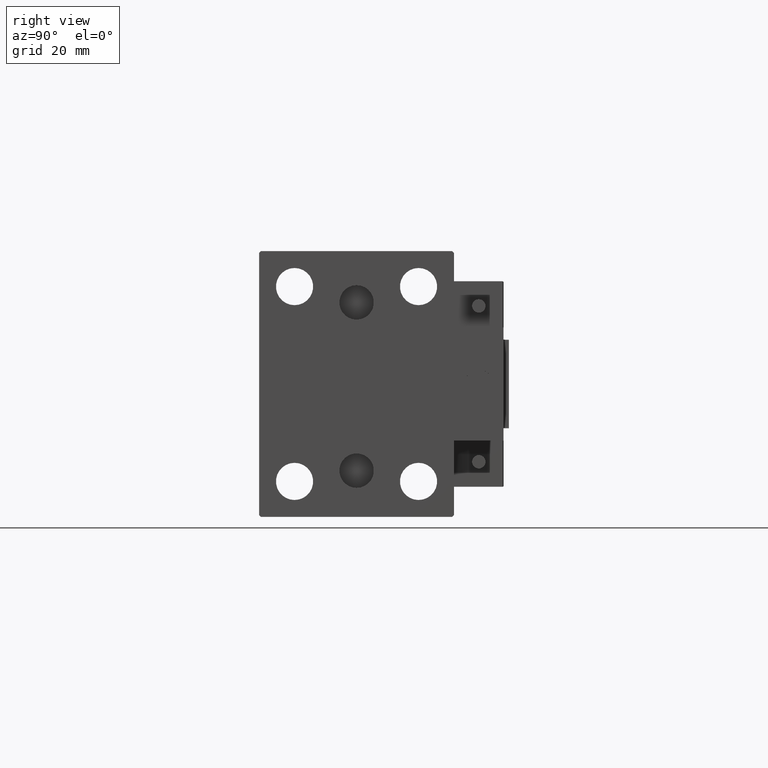
[diagram: clean part render]
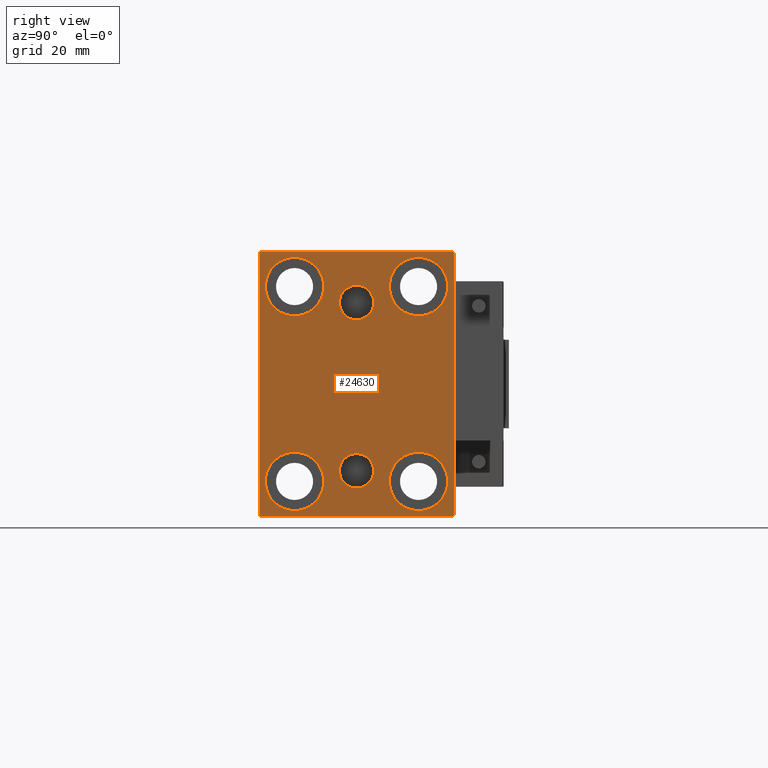
[diagram: same view with one face highlighted and labeled with its STEP entity id]
A machine part, right view. The second image highlights one B-rep face of the part: STEP entity #24630.
In plain terms, the highlighted planar face has unit normal (1, 0, 0).
Its self-contained STEP definition (entity closure, byte-faithful):
#206 = EDGE_CURVE ( 'NONE', #32505, #12511, #14375, .T. ) ;
#589 = FACE_BOUND ( 'NONE', #18630, .T. ) ;
#592 = CARTESIAN_POINT ( 'NONE',  ( 80.00000000000000000, -17.50000000000000355, -27.50000000000000355 ) ) ;
#665 = VERTEX_POINT ( 'NONE', #2982 ) ;
#693 = DIRECTION ( 'NONE',  ( -1.000000000000000000, -0.000000000000000000, -0.000000000000000000 ) ) ;
#1016 = DIRECTION ( 'NONE',  ( 0.000000000000000000, -1.000000000000000000, -1.261617073437677999E-16 ) ) ;
#1263 = VECTOR ( 'NONE', #10693, 1000.000000000000114 ) ;
#1475 = CARTESIAN_POINT ( 'NONE',  ( 80.00000000000000000, 17.50000000000000355, 19.25000000000000000 ) ) ;
#1884 = CIRCLE ( 'NONE', #2748, 4.859999999999999432 ) ;
#2004 = CARTESIAN_POINT ( 'NONE',  ( 80.00000000000000000, 17.49999999999999645, -27.50000000000000355 ) ) ;
#2748 = AXIS2_PLACEMENT_3D ( 'NONE', #18141, #25960, #18413 ) ;
#2836 = DIRECTION ( 'NONE',  ( -1.000000000000000000, -0.000000000000000000, -0.000000000000000000 ) ) ;
#2862 = CIRCLE ( 'NONE', #44503, 8.250000000000000000 ) ;
#2982 = CARTESIAN_POINT ( 'NONE',  ( 80.00000000000000000, -2.976515330312223406E-15, 27.86000000000000654 ) ) ;
#3001 = VERTEX_POINT ( 'NONE', #24083 ) ;
#3263 = ORIENTED_EDGE ( 'NONE', *, *, #15013, .T. ) ;
#3746 = VECTOR ( 'NONE', #45328, 1000.000000000000000 ) ;
#3985 = FACE_OUTER_BOUND ( 'NONE', #51527, .T. ) ;
#4497 = FACE_BOUND ( 'NONE', #13496, .T. ) ;
#4809 = VERTEX_POINT ( 'NONE', #27253 ) ;
#5797 = VECTOR ( 'NONE', #6567, 1000.000000000000114 ) ;
#6159 = ORIENTED_EDGE ( 'NONE', *, *, #23266, .F. ) ;
#6535 = CARTESIAN_POINT ( 'NONE',  ( 80.00000000000000000, -3.571693674697836683E-15, 23.00000000000000711 ) ) ;
#6567 = DIRECTION ( 'NONE',  ( 0.000000000000000000, -0.7071067811865474617, -0.7071067811865474617 ) ) ;
#7248 = AXIS2_PLACEMENT_3D ( 'NONE', #6535, #39367, #50871 ) ;
#7333 = DIRECTION ( 'NONE',  ( -1.000000000000000000, -0.000000000000000000, -0.000000000000000000 ) ) ;
#7385 = ORIENTED_EDGE ( 'NONE', *, *, #21562, .T. ) ;
#7734 = DIRECTION ( 'NONE',  ( 1.000000000000000000, 0.000000000000000000, -0.000000000000000000 ) ) ;
#8117 = CIRCLE ( 'NONE', #37261, 8.249999999999992895 ) ;
#8307 = CIRCLE ( 'NONE', #37438, 8.249999999999992895 ) ;
#8674 = DIRECTION ( 'NONE',  ( 0.000000000000000000, 0.000000000000000000, -1.000000000000000000 ) ) ;
#8930 = DIRECTION ( 'NONE',  ( 0.000000000000000000, 0.000000000000000000, 1.000000000000000000 ) ) ;
#9071 = CIRCLE ( 'NONE', #41503, 4.859999999999999432 ) ;
#9331 = CARTESIAN_POINT ( 'NONE',  ( 80.00000000000000000, 27.50000000000000355, -37.50000000000000000 ) ) ;
#9582 = CARTESIAN_POINT ( 'NONE',  ( 80.00000000000000000, 27.00000000000001066, 37.50000000000000711 ) ) ;
#9637 = DIRECTION ( 'NONE',  ( 0.000000000000000000, 0.000000000000000000, 1.000000000000000000 ) ) ;
#10356 = DIRECTION ( 'NONE',  ( -1.000000000000000000, -0.000000000000000000, -0.000000000000000000 ) ) ;
#10390 = DIRECTION ( 'NONE',  ( 1.000000000000000000, 0.000000000000000000, 0.000000000000000000 ) ) ;
#10534 = DIRECTION ( 'NONE',  ( 0.000000000000000000, 0.000000000000000000, 1.000000000000000000 ) ) ;
#10573 = VERTEX_POINT ( 'NONE', #31484 ) ;
#10693 = DIRECTION ( 'NONE',  ( -0.000000000000000000, 0.7071067811865474617, -0.7071067811865474617 ) ) ;
#11700 = VERTEX_POINT ( 'NONE', #9582 ) ;
#12418 = VERTEX_POINT ( 'NONE', #21933 ) ;
#12420 = AXIS2_PLACEMENT_3D ( 'NONE', #23650, #693, #15817 ) ;
#12495 = CARTESIAN_POINT ( 'NONE',  ( 80.00000000000000000, -26.99999999999998934, -37.50000000000000000 ) ) ;
#12503 = ORIENTED_EDGE ( 'NONE', *, *, #47968, .F. ) ;
#12511 = VERTEX_POINT ( 'NONE', #38362 ) ;
#12841 = PLANE ( 'NONE',  #51082 ) ;
#13059 = CARTESIAN_POINT ( 'NONE',  ( 80.00000000000000000, -27.50000000000000355, -36.99999999999998579 ) ) ;
#13256 = CARTESIAN_POINT ( 'NONE',  ( 80.00000000000000000, -27.50000000000000355, -37.50000000000000000 ) ) ;
#13448 = EDGE_CURVE ( 'NONE', #16424, #10573, #8307, .T. ) ;
#13496 = EDGE_LOOP ( 'NONE', ( #30954, #12503 ) ) ;
#14069 = EDGE_CURVE ( 'NONE', #30592, #12418, #22510, .T. ) ;
#14176 = CARTESIAN_POINT ( 'NONE',  ( 80.00000000000000000, -17.49999999999999645, 27.49999999999999645 ) ) ;
#14322 = VECTOR ( 'NONE', #33231, 1000.000000000000000 ) ;
#14375 = LINE ( 'NONE', #34706, #5797 ) ;
#15013 = EDGE_CURVE ( 'NONE', #30414, #45983, #16208, .T. ) ;
#15037 = CARTESIAN_POINT ( 'NONE',  ( 80.00000000000000000, 17.49999999999999645, -35.75000000000000711 ) ) ;
#15566 = VECTOR ( 'NONE', #44435, 1000.000000000000000 ) ;
#15817 = DIRECTION ( 'NONE',  ( 0.000000000000000000, 0.000000000000000000, 1.000000000000000000 ) ) ;
#16060 = VECTOR ( 'NONE', #1016, 1000.000000000000000 ) ;
#16142 = CARTESIAN_POINT ( 'NONE',  ( 80.00000000000000000, -17.50000000000000355, -19.25000000000000355 ) ) ;
#16208 = LINE ( 'NONE', #19366, #40035 ) ;
#16424 = VERTEX_POINT ( 'NONE', #25877 ) ;
#16563 = ORIENTED_EDGE ( 'NONE', *, *, #37217, .T. ) ;
#16596 = ORIENTED_EDGE ( 'NONE', *, *, #46373, .F. ) ;
#16964 = CARTESIAN_POINT ( 'NONE',  ( 80.00000000000000000, -17.49999999999999645, 27.49999999999999645 ) ) ;
#17053 = ORIENTED_EDGE ( 'NONE', *, *, #18576, .T. ) ;
#17223 = DIRECTION ( 'NONE',  ( -1.000000000000000000, -0.000000000000000000, -0.000000000000000000 ) ) ;
#17326 = CARTESIAN_POINT ( 'NONE',  ( 80.00000000000000000, -27.50000000000000355, 37.50000000000000000 ) ) ;
#18125 = CIRCLE ( 'NONE', #12420, 8.249999999999992895 ) ;
#18141 = CARTESIAN_POINT ( 'NONE',  ( 80.00000000000000000, 3.000384657911015074E-15, -24.49999999999999289 ) ) ;
#18274 = ORIENTED_EDGE ( 'NONE', *, *, #25200, .T. ) ;
#18413 = DIRECTION ( 'NONE',  ( 0.000000000000000000, 0.000000000000000000, 1.000000000000000000 ) ) ;
#18576 = EDGE_CURVE ( 'NONE', #12511, #21383, #21235, .T. ) ;
#18630 = EDGE_LOOP ( 'NONE', ( #18274, #39016 ) ) ;
#19159 = EDGE_CURVE ( 'NONE', #20230, #23268, #21014, .T. ) ;
#19366 = CARTESIAN_POINT ( 'NONE',  ( 80.00000000000000000, 32.25000000000000000, -32.25000000000000000 ) ) ;
#19804 = CARTESIAN_POINT ( 'NONE',  ( 80.00000000000000000, -17.50000000000000355, -35.75000000000000711 ) ) ;
#20230 = VERTEX_POINT ( 'NONE', #48527 ) ;
#20690 = VERTEX_POINT ( 'NONE', #12495 ) ;
#20694 = LINE ( 'NONE', #25128, #15566 ) ;
#20807 = EDGE_CURVE ( 'NONE', #11700, #32505, #20809, .T. ) ;
#20809 = LINE ( 'NONE', #26002, #16060 ) ;
#21014 = CIRCLE ( 'NONE', #46011, 8.249999999999992895 ) ;
#21235 = LINE ( 'NONE', #17326, #14322 ) ;
#21383 = VERTEX_POINT ( 'NONE', #13059 ) ;
#21562 = EDGE_CURVE ( 'NONE', #45983, #36088, #28869, .T. ) ;
#21708 = DIRECTION ( 'NONE',  ( 0.000000000000000000, 0.000000000000000000, 1.000000000000000000 ) ) ;
#21890 = AXIS2_PLACEMENT_3D ( 'NONE', #50568, #2836, #9637 ) ;
#21933 = CARTESIAN_POINT ( 'NONE',  ( 80.00000000000000000, 17.49999999999999645, -19.25000000000000355 ) ) ;
#22301 = ORIENTED_EDGE ( 'NONE', *, *, #20807, .T. ) ;
#22510 = CIRCLE ( 'NONE', #29173, 8.250000000000000000 ) ;
#23266 = EDGE_CURVE ( 'NONE', #4809, #26937, #1884, .T. ) ;
#23268 = VERTEX_POINT ( 'NONE', #1475 ) ;
#23639 = ORIENTED_EDGE ( 'NONE', *, *, #14069, .T. ) ;
#23650 = CARTESIAN_POINT ( 'NONE',  ( 80.00000000000000000, 17.50000000000000355, 27.49999999999999645 ) ) ;
#24053 = FACE_BOUND ( 'NONE', #51130, .T. ) ;
#24083 = CARTESIAN_POINT ( 'NONE',  ( 80.00000000000000000, -3.571693674697836683E-15, 18.14000000000000767 ) ) ;
#24581 = EDGE_LOOP ( 'NONE', ( #45289, #45966 ) ) ;
#24630 = ADVANCED_FACE ( 'NONE', ( #4497, #36292, #24053, #35786, #43621, #589, #3985 ), #12841, .T. ) ;
#25039 = CARTESIAN_POINT ( 'NONE',  ( 80.00000000000000000, 27.49999999999999645, 37.00000000000001421 ) ) ;
#25128 = CARTESIAN_POINT ( 'NONE',  ( 80.00000000000000000, 32.25000000000019185, 32.24999999999975131 ) ) ;
#25200 = EDGE_CURVE ( 'NONE', #28754, #41398, #44388, .T. ) ;
#25877 = CARTESIAN_POINT ( 'NONE',  ( 80.00000000000000000, -17.49999999999999645, 19.25000000000000000 ) ) ;
#25960 = DIRECTION ( 'NONE',  ( 1.000000000000000000, 0.000000000000000000, -0.000000000000000000 ) ) ;
#26002 = CARTESIAN_POINT ( 'NONE',  ( 80.00000000000000000, 27.49999999999999645, 37.50000000000000711 ) ) ;
#26273 = CARTESIAN_POINT ( 'NONE',  ( 80.00000000000000000, -27.00000000000001776, 37.50000000000000000 ) ) ;
#26274 = DIRECTION ( 'NONE',  ( 0.000000000000000000, 0.000000000000000000, -1.000000000000000000 ) ) ;
#26321 = LINE ( 'NONE', #38321, #1263 ) ;
#26619 = EDGE_CURVE ( 'NONE', #12418, #30592, #2862, .T. ) ;
#26937 = VERTEX_POINT ( 'NONE', #34259 ) ;
#27253 = CARTESIAN_POINT ( 'NONE',  ( 80.00000000000000000, 3.595563002296627957E-15, -19.63999999999999346 ) ) ;
#27283 = CARTESIAN_POINT ( 'NONE',  ( 80.00000000000000000, 3.000384657911015074E-15, -24.49999999999999289 ) ) ;
#28282 = ORIENTED_EDGE ( 'NONE', *, *, #41828, .T. ) ;
#28754 = VERTEX_POINT ( 'NONE', #19804 ) ;
#28869 = LINE ( 'NONE', #9331, #42764 ) ;
#29173 = AXIS2_PLACEMENT_3D ( 'NONE', #41535, #34739, #21708 ) ;
#30155 = DIRECTION ( 'NONE',  ( 0.000000000000000000, 0.000000000000000000, 1.000000000000000000 ) ) ;
#30414 = VERTEX_POINT ( 'NONE', #31355 ) ;
#30592 = VERTEX_POINT ( 'NONE', #15037 ) ;
#30954 = ORIENTED_EDGE ( 'NONE', *, *, #41324, .F. ) ;
#31355 = CARTESIAN_POINT ( 'NONE',  ( 80.00000000000000000, 27.00000000000000355, -37.50000000000000000 ) ) ;
#31379 = CIRCLE ( 'NONE', #7248, 4.859999999999999432 ) ;
#31452 = AXIS2_PLACEMENT_3D ( 'NONE', #50029, #10390, #26274 ) ;
#31484 = CARTESIAN_POINT ( 'NONE',  ( 80.00000000000000000, -17.49999999999999645, 35.74999999999999289 ) ) ;
#31599 = DIRECTION ( 'NONE',  ( -0.000000000000000000, 0.7071067811865474617, 0.7071067811865474617 ) ) ;
#31941 = ORIENTED_EDGE ( 'NONE', *, *, #19159, .T. ) ;
#32505 = VERTEX_POINT ( 'NONE', #26273 ) ;
#32789 = DIRECTION ( 'NONE',  ( 0.000000000000000000, -9.251858538542970348E-17, 1.000000000000000000 ) ) ;
#32815 = ORIENTED_EDGE ( 'NONE', *, *, #26619, .T. ) ;
#32873 = DIRECTION ( 'NONE',  ( 0.000000000000000000, 0.000000000000000000, 1.000000000000000000 ) ) ;
#33231 = DIRECTION ( 'NONE',  ( 0.000000000000000000, 0.000000000000000000, -1.000000000000000000 ) ) ;
#33315 = LINE ( 'NONE', #13256, #3746 ) ;
#34259 = CARTESIAN_POINT ( 'NONE',  ( 80.00000000000000000, 3.000384657911015074E-15, -29.35999999999999233 ) ) ;
#34706 = CARTESIAN_POINT ( 'NONE',  ( 80.00000000000000000, -32.25000000000000711, 32.25000000000000711 ) ) ;
#34739 = DIRECTION ( 'NONE',  ( -1.000000000000000000, -0.000000000000000000, -0.000000000000000000 ) ) ;
#35786 = FACE_BOUND ( 'NONE', #24581, .T. ) ;
#36088 = VERTEX_POINT ( 'NONE', #25039 ) ;
#36292 = FACE_BOUND ( 'NONE', #44619, .T. ) ;
#37096 = EDGE_CURVE ( 'NONE', #21383, #20690, #26321, .T. ) ;
#37217 = EDGE_CURVE ( 'NONE', #20690, #30414, #33315, .T. ) ;
#37261 = AXIS2_PLACEMENT_3D ( 'NONE', #14176, #46259, #10534 ) ;
#37438 = AXIS2_PLACEMENT_3D ( 'NONE', #16964, #17223, #32873 ) ;
#37479 = ORIENTED_EDGE ( 'NONE', *, *, #47264, .T. ) ;
#38321 = CARTESIAN_POINT ( 'NONE',  ( 80.00000000000000000, -32.24999999999999289, -32.24999999999999289 ) ) ;
#38362 = CARTESIAN_POINT ( 'NONE',  ( 80.00000000000000000, -27.50000000000000355, 37.00000000000001421 ) ) ;
#39016 = ORIENTED_EDGE ( 'NONE', *, *, #44577, .T. ) ;
#39367 = DIRECTION ( 'NONE',  ( 1.000000000000000000, 0.000000000000000000, 0.000000000000000000 ) ) ;
#40035 = VECTOR ( 'NONE', #31599, 1000.000000000000114 ) ;
#40464 = DIRECTION ( 'NONE',  ( 1.000000000000000000, 0.000000000000000000, 0.000000000000000000 ) ) ;
#41324 = EDGE_CURVE ( 'NONE', #3001, #665, #31379, .T. ) ;
#41398 = VERTEX_POINT ( 'NONE', #16142 ) ;
#41503 = AXIS2_PLACEMENT_3D ( 'NONE', #27283, #7734, #46343 ) ;
#41535 = CARTESIAN_POINT ( 'NONE',  ( 80.00000000000000000, 17.49999999999999645, -27.50000000000000355 ) ) ;
#41828 = EDGE_CURVE ( 'NONE', #36088, #11700, #20694, .T. ) ;
#41917 = EDGE_LOOP ( 'NONE', ( #37479, #31941 ) ) ;
#42547 = CARTESIAN_POINT ( 'NONE',  ( 80.00000000000000000, 17.50000000000000355, 27.49999999999999645 ) ) ;
#42555 = ORIENTED_EDGE ( 'NONE', *, *, #37096, .T. ) ;
#42603 = EDGE_CURVE ( 'NONE', #10573, #16424, #8117, .T. ) ;
#42764 = VECTOR ( 'NONE', #32789, 1000.000000000000000 ) ;
#43621 = FACE_BOUND ( 'NONE', #41917, .T. ) ;
#43925 = CIRCLE ( 'NONE', #44791, 8.250000000000000000 ) ;
#44388 = CIRCLE ( 'NONE', #21890, 8.250000000000000000 ) ;
#44435 = DIRECTION ( 'NONE',  ( -0.000000000000000000, -0.7071067811865426878, 0.7071067811865524577 ) ) ;
#44503 = AXIS2_PLACEMENT_3D ( 'NONE', #2004, #10356, #30155 ) ;
#44577 = EDGE_CURVE ( 'NONE', #41398, #28754, #43925, .T. ) ;
#44619 = EDGE_LOOP ( 'NONE', ( #16596, #6159 ) ) ;
#44788 = CIRCLE ( 'NONE', #31452, 4.859999999999999432 ) ;
#44791 = AXIS2_PLACEMENT_3D ( 'NONE', #592, #48321, #8930 ) ;
#45289 = ORIENTED_EDGE ( 'NONE', *, *, #13448, .T. ) ;
#45328 = DIRECTION ( 'NONE',  ( 0.000000000000000000, 1.000000000000000000, 0.000000000000000000 ) ) ;
#45966 = ORIENTED_EDGE ( 'NONE', *, *, #42603, .T. ) ;
#45983 = VERTEX_POINT ( 'NONE', #47185 ) ;
#46011 = AXIS2_PLACEMENT_3D ( 'NONE', #42547, #7333, #46462 ) ;
#46259 = DIRECTION ( 'NONE',  ( -1.000000000000000000, -0.000000000000000000, -0.000000000000000000 ) ) ;
#46343 = DIRECTION ( 'NONE',  ( 0.000000000000000000, 0.000000000000000000, 1.000000000000000000 ) ) ;
#46373 = EDGE_CURVE ( 'NONE', #26937, #4809, #9071, .T. ) ;
#46462 = DIRECTION ( 'NONE',  ( 0.000000000000000000, 0.000000000000000000, 1.000000000000000000 ) ) ;
#47185 = CARTESIAN_POINT ( 'NONE',  ( 80.00000000000000000, 27.50000000000000355, -37.00000000000000000 ) ) ;
#47264 = EDGE_CURVE ( 'NONE', #23268, #20230, #18125, .T. ) ;
#47800 = CARTESIAN_POINT ( 'NONE',  ( 80.00000000000000000, 0.000000000000000000, 0.000000000000000000 ) ) ;
#47968 = EDGE_CURVE ( 'NONE', #665, #3001, #44788, .T. ) ;
#48321 = DIRECTION ( 'NONE',  ( -1.000000000000000000, -0.000000000000000000, -0.000000000000000000 ) ) ;
#48527 = CARTESIAN_POINT ( 'NONE',  ( 80.00000000000000000, 17.50000000000000355, 35.74999999999999289 ) ) ;
#50029 = CARTESIAN_POINT ( 'NONE',  ( 80.00000000000000000, -3.571693674697836683E-15, 23.00000000000000711 ) ) ;
#50239 = ORIENTED_EDGE ( 'NONE', *, *, #206, .T. ) ;
#50568 = CARTESIAN_POINT ( 'NONE',  ( 80.00000000000000000, -17.50000000000000355, -27.50000000000000355 ) ) ;
#50871 = DIRECTION ( 'NONE',  ( 0.000000000000000000, 0.000000000000000000, -1.000000000000000000 ) ) ;
#51082 = AXIS2_PLACEMENT_3D ( 'NONE', #47800, #40464, #8674 ) ;
#51130 = EDGE_LOOP ( 'NONE', ( #23639, #32815 ) ) ;
#51527 = EDGE_LOOP ( 'NONE', ( #22301, #50239, #17053, #42555, #16563, #3263, #7385, #28282 ) ) ;